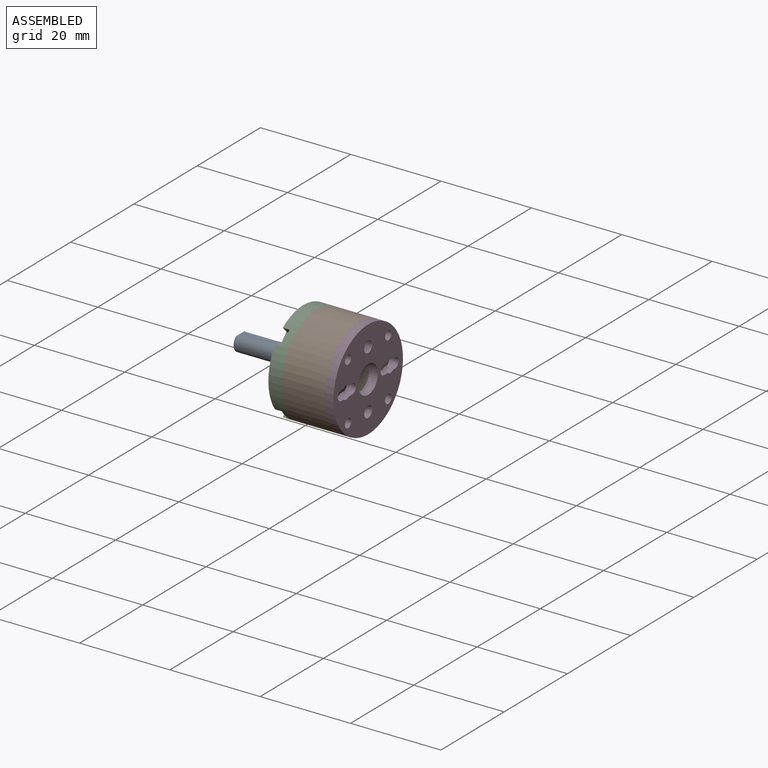
[diagram: assembled view]
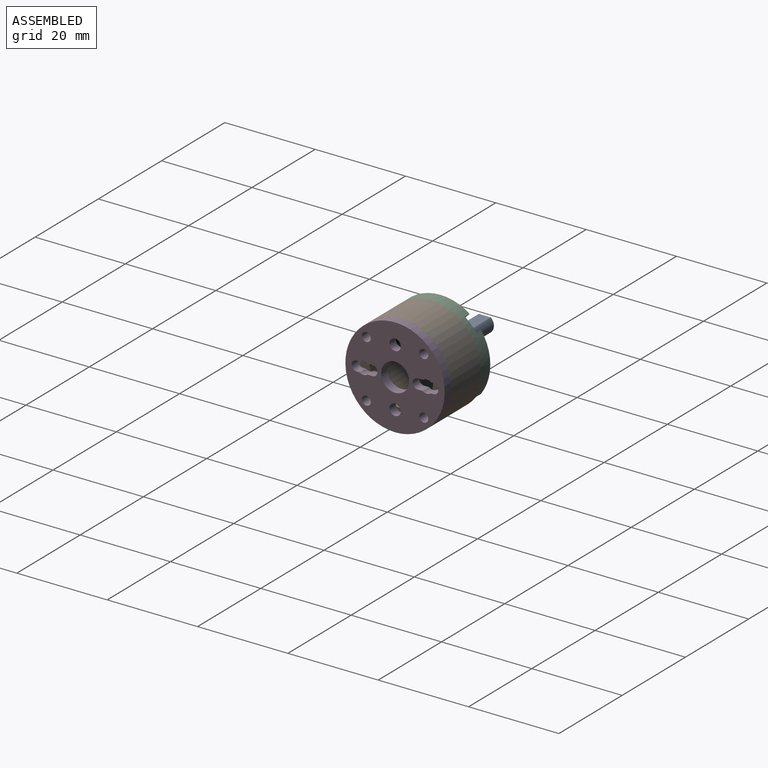
[diagram: assembled view, second angle]
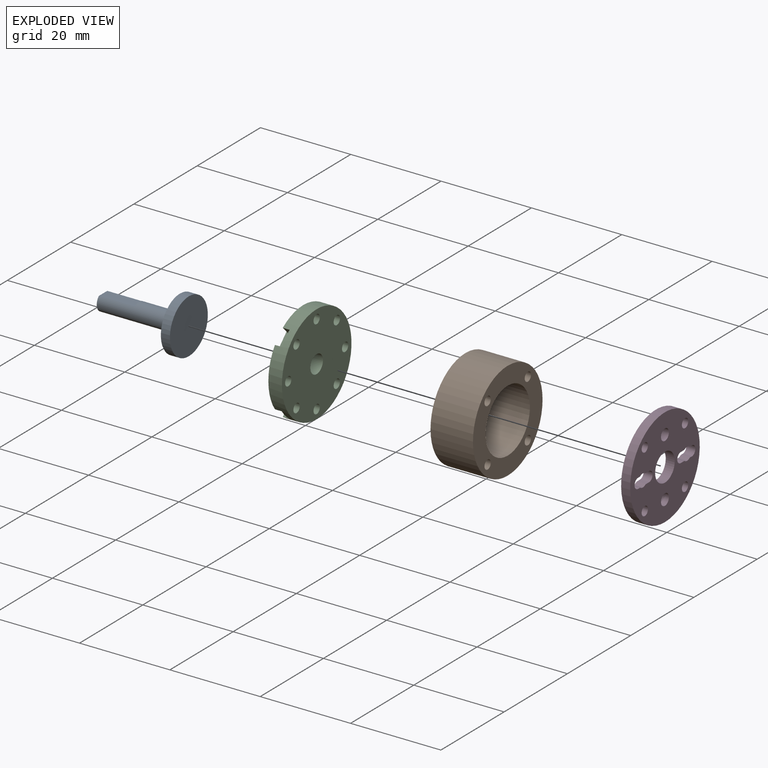
[diagram: exploded view]
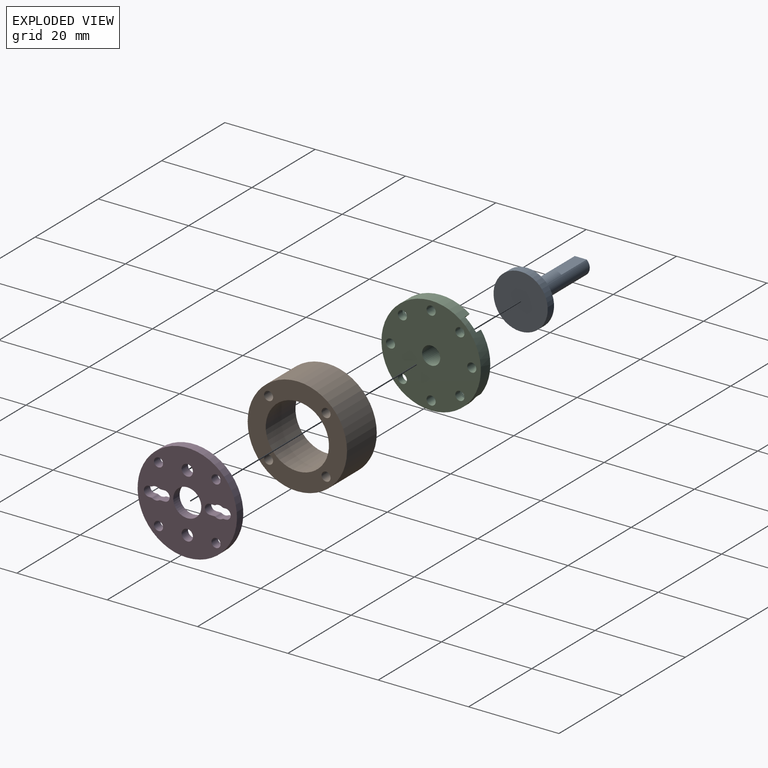
[diagram: exploded view, second angle]
ASSEMBLY  parts=4 mates=6
PART A: 7 faces, bbox 19x12x12 mm
  f0: cylinder r=2mm len=17mm, axis (-1,0,0), area 190.5mm2, adj f1,f2,f3,f6
  f1: plane 4x3.5mm, normal (-1,0,0), area 11.7mm2, adj f0,f2
  f2: plane 8x2.65mm, normal (0,0,1), area 21.2mm2, adj f0,f1,f3
  f3: plane 2.65x0.5mm, normal (-1,0,0), area 0.9mm2, adj f0,f2
  f4: cylinder r=6mm len=12mm, axis (-1,0,0), area 75.4mm2, adj f5,f6
  f5: plane 12x12mm, normal (1,0,0), area 113.1mm2, adj f4
  f6: plane 12x12mm, normal (-1,0,0), area 100.5mm2, adj f0,f4
PART B: 8 faces, bbox 9.4x22x22 mm
  f0: cylinder r=7mm len=14mm, axis (-1,0,0), area 413.4mm2, adj f2,f3
  f1: cylinder r=11mm len=22mm, axis (-1,0,0), area 649.7mm2, adj f2,f3
  f2: plane 22x22mm, normal (1,0,0), area 213.6mm2, adj f0,f1,f4,f5,f6,f7
  f3: plane 22x22mm, normal (-1,0,0), area 213.6mm2, adj f0,f1,f4,f5,f6,f7
  f4: cylinder r=1mm len=9.4mm, axis (-1,0,0), area 59.1mm2, adj f2,f3
  f5: cylinder r=1mm len=9.4mm, axis (-1,0,0), area 59.1mm2, adj f2,f3
  f6: cylinder r=1mm len=9.4mm, axis (-1,0,0), area 59.1mm2, adj f2,f3
  f7: cylinder r=1mm len=9.4mm, axis (-1,0,0), area 59.1mm2, adj f2,f3
PART C: 33 faces, bbox 5x22x22 mm
  f0: plane 22x22mm, normal (-1,0,0), area 176.8mm2, adj f5,f7,f8,f9,f10,f13,f14,f15
  f1: cylinder r=1mm len=2mm, axis (-1,0,0), area 9.4mm2, adj f6,f32
  f2: cylinder r=1mm len=2mm, axis (-1,0,0), area 9.4mm2, adj f6,f28
  f3: cylinder r=1mm len=2mm, axis (-1,0,0), area 9.4mm2, adj f6,f24
  f4: cylinder r=1mm len=2mm, axis (-1,0,0), area 9.4mm2, adj f6,f20
  f5: cylinder r=11mm len=22mm, axis (-1,0,0), area 186.3mm2, adj f0,f6,f17,f19,f20,f21,f23,f24
  f6: plane 22x22mm, normal (1,0,0), area 342.4mm2, adj f1,f2,f3,f4,f5,f12,f13,f14
  f7: cylinder r=7mm len=8.69mm, axis (-1,0,0), area 28.8mm2, adj f0,f8,f10,f11
  f8: plane 5.1x5.1mm, normal (0,0.71,-0.71), area 14.4mm2, adj f0,f7,f9,f11
  f9: cylinder r=7mm len=8.69mm, axis (-1,0,0), area 28.8mm2, adj f0,f8,f10,f11
  f10: plane 5.1x5.1mm, normal (0,-0.71,0.71), area 14.4mm2, adj f0,f7,f9,f11
  f11: plane 14x14mm, normal (-1,0,0), area 131.6mm2, adj f7,f8,f9,f10,f12
  f12: cylinder r=2mm len=5mm, axis (-1,0,0), area 62.8mm2, adj f6,f11
  f13: cylinder r=1mm len=3mm, axis (-1,0,0), area 18.8mm2, adj f0,f6
  f14: cylinder r=1mm len=3mm, axis (-1,0,0), area 18.8mm2, adj f0,f6
  f15: cylinder r=1mm len=3mm, axis (-1,0,0), area 18.8mm2, adj f0,f6
  f16: cylinder r=1mm len=3mm, axis (-1,0,0), area 18.8mm2, adj f0,f6
  f17: plane 1.5x1.32mm, normal (0,-0.71,-0.71), area 2.8mm2, adj f0,f5,f18,f20
  f18: cylinder r=1.75mm len=2.99mm, axis (-1,0,0), area 8.2mm2, adj f0,f17,f19,f20
  f19: plane 1.5x1.32mm, normal (0,0.71,0.71), area 2.8mm2, adj f0,f5,f18,f20
  f20: plane 4.3x4.3mm, normal (-1,0,0), area 8.5mm2, adj f4,f5,f17,f18,f19
  f21: plane 1.5x1.32mm, normal (0,0.71,-0.71), area 2.8mm2, adj f0,f5,f22,f24
  f22: cylinder r=1.75mm len=2.99mm, axis (-1,0,0), area 8.2mm2, adj f0,f21,f23,f24
  f23: plane 1.5x1.32mm, normal (0,-0.71,0.71), area 2.8mm2, adj f0,f5,f22,f24
  f24: plane 4.3x4.3mm, normal (-1,0,0), area 8.5mm2, adj f3,f5,f21,f22,f23
  f25: plane 1.5x1.32mm, normal (0,0.71,0.71), area 2.8mm2, adj f0,f5,f26,f28
  f26: cylinder r=1.75mm len=2.99mm, axis (-1,0,0), area 8.2mm2, adj f0,f25,f27,f28
  f27: plane 1.5x1.32mm, normal (0,-0.71,-0.71), area 2.8mm2, adj f0,f5,f26,f28
  f28: plane 4.3x4.3mm, normal (-1,0,0), area 8.5mm2, adj f2,f5,f25,f26,f27
  f29: cylinder r=1.75mm len=2.99mm, axis (-1,0,0), area 8.2mm2, adj f0,f30,f31,f32
  f30: plane 1.5x1.32mm, normal (0,0.71,-0.71), area 2.8mm2, adj f0,f5,f29,f32
  f31: plane 1.5x1.32mm, normal (0,-0.71,0.71), area 2.8mm2, adj f0,f5,f29,f32
  f32: plane 4.3x4.3mm, normal (-1,0,0), area 8.5mm2, adj f1,f5,f29,f30,f31
PART D: 38 faces, bbox 2x22x22 mm
  f0: cylinder r=1.1mm len=2mm, axis (-1,0,0), area 3.5mm2, adj f1,f35,f36,f37
  f1: plane 2x0.48mm, normal (0,0,-1), area 1mm2, adj f0,f2,f36,f37
  f2: cylinder r=0.5mm len=2mm, axis (-1,0,0), area 0.6mm2, adj f1,f3,f36,f37
  f3: cylinder r=1.4mm len=2mm, axis (-1,0,0), area 3.2mm2, adj f2,f4,f36,f37
  f4: cylinder r=0.5mm len=2mm, axis (-1,0,0), area 0.6mm2, adj f3,f5,f36,f37
  f5: plane 2x0.98mm, normal (0,0,-1), area 2mm2, adj f4,f6,f36,f37
  f6: cylinder r=1.1mm len=2mm, axis (-1,0,0), area 3.5mm2, adj f5,f7,f36,f37
  f7: cylinder r=1.1mm len=2mm, axis (-1,0,0), area 3.5mm2, adj f6,f8,f36,f37
  f8: plane 2x0.98mm, normal (0,0,1), area 2mm2, adj f7,f9,f36,f37
  f9: cylinder r=0.5mm len=2mm, axis (-1,0,0), area 0.6mm2, adj f8,f10,f36,f37
  f10: cylinder r=1.4mm len=2mm, axis (-1,0,0), area 3.2mm2, adj f9,f11,f36,f37
  f11: cylinder r=0.5mm len=2mm, axis (-1,0,0), area 0.6mm2, adj f10,f12,f36,f37
  f12: plane 2x0.48mm, normal (0,0,1), area 1mm2, adj f11,f35,f36,f37
  f13: cylinder r=1.1mm len=2mm, axis (-1,0,0), area 3.5mm2, adj f14,f26,f36,f37
  f14: cylinder r=1.1mm len=2mm, axis (-1,0,0), area 3.5mm2, adj f13,f15,f36,f37
  f15: plane 2x0.48mm, normal (0,0,1), area 1mm2, adj f14,f16,f36,f37
  f16: cylinder r=0.5mm len=2mm, axis (-1,0,0), area 0.6mm2, adj f15,f17,f36,f37
  f17: cylinder r=1.4mm len=2mm, axis (-1,0,0), area 3.2mm2, adj f16,f18,f36,f37
  f18: cylinder r=0.5mm len=2mm, axis (-1,0,0), area 0.6mm2, adj f17,f19,f36,f37
  f19: plane 2x0.98mm, normal (0,0,1), area 2mm2, adj f18,f20,f36,f37
  f20: cylinder r=1.1mm len=2mm, axis (-1,0,0), area 3.5mm2, adj f19,f21,f36,f37
  f21: cylinder r=1.1mm len=2mm, axis (-1,0,0), area 3.5mm2, adj f20,f22,f36,f37
  f22: plane 2x0.98mm, normal (0,0,-1), area 2mm2, adj f21,f23,f36,f37
  f23: cylinder r=0.5mm len=2mm, axis (-1,0,0), area 0.6mm2, adj f22,f24,f36,f37
  f24: cylinder r=1.4mm len=2mm, axis (-1,0,0), area 3.2mm2, adj f23,f25,f36,f37
  f25: cylinder r=0.5mm len=2mm, axis (-1,0,0), area 0.6mm2, adj f24,f26,f36,f37
  f26: plane 2x0.48mm, normal (0,0,-1), area 1mm2, adj f13,f25,f36,f37
  f27: cylinder r=11mm len=22mm, axis (-1,0,0), area 138.2mm2, adj f36,f37
  f28: cylinder r=3.1mm len=6.2mm, axis (-1,0,0), area 39mm2, adj f36,f37
  f29: cylinder r=1.25mm len=2.5mm, axis (-1,0,0), area 15.7mm2, adj f36,f37
  f30: cylinder r=1mm len=2mm, axis (-1,0,0), area 12.6mm2, adj f36,f37
  f31: cylinder r=1mm len=2mm, axis (-1,0,0), area 12.6mm2, adj f36,f37
  f32: cylinder r=1mm len=2mm, axis (-1,0,0), area 12.6mm2, adj f36,f37
  f33: cylinder r=1mm len=2mm, axis (-1,0,0), area 12.6mm2, adj f36,f37
  f34: cylinder r=1.25mm len=2.5mm, axis (-1,0,0), area 15.7mm2, adj f36,f37
  f35: cylinder r=1.1mm len=2mm, axis (-1,0,0), area 3.5mm2, adj f0,f12,f36,f37
  f36: plane 22x22mm, normal (1,0,0), area 303mm2, adj f0,f1,f2,f3,f4,f5,f6,f7
  f37: plane 22x22mm, normal (-1,0,0), area 303mm2, adj f0,f1,f2,f3,f4,f5,f6,f7
PLACE A t=(-16.13,2.31,-0.32)mm
PLACE B t=(0.87,2.31,-0.32)mm
PLACE C t=(-4.13,2.31,-0.32)mm fixed
PLACE D t=(10.27,2.31,-0.32)mm
MATE planar B.f1 <-> C.f15  axis (-1,0,0) through (0.87,2.31,-0.32)mm
MATE slider B.f1 <-> D.f27  axis (-1,0,0) through (5.57,2.31,-0.32)mm
MATE planar B.f1 <-> D.f16  axis (1,0,0) through (10.27,2.31,-0.32)mm
MATE slider C.f5 <-> B.f1  axis (-1,0,0) through (-0.63,2.31,-0.32)mm
MATE slider A.f0 <-> C.f5  axis (-1,0,0) through (-7.63,2.31,-0.32)mm
MATE planar A.f4 <-> C.f5  axis (-1,0,0) through (0.87,2.31,-0.32)mm
